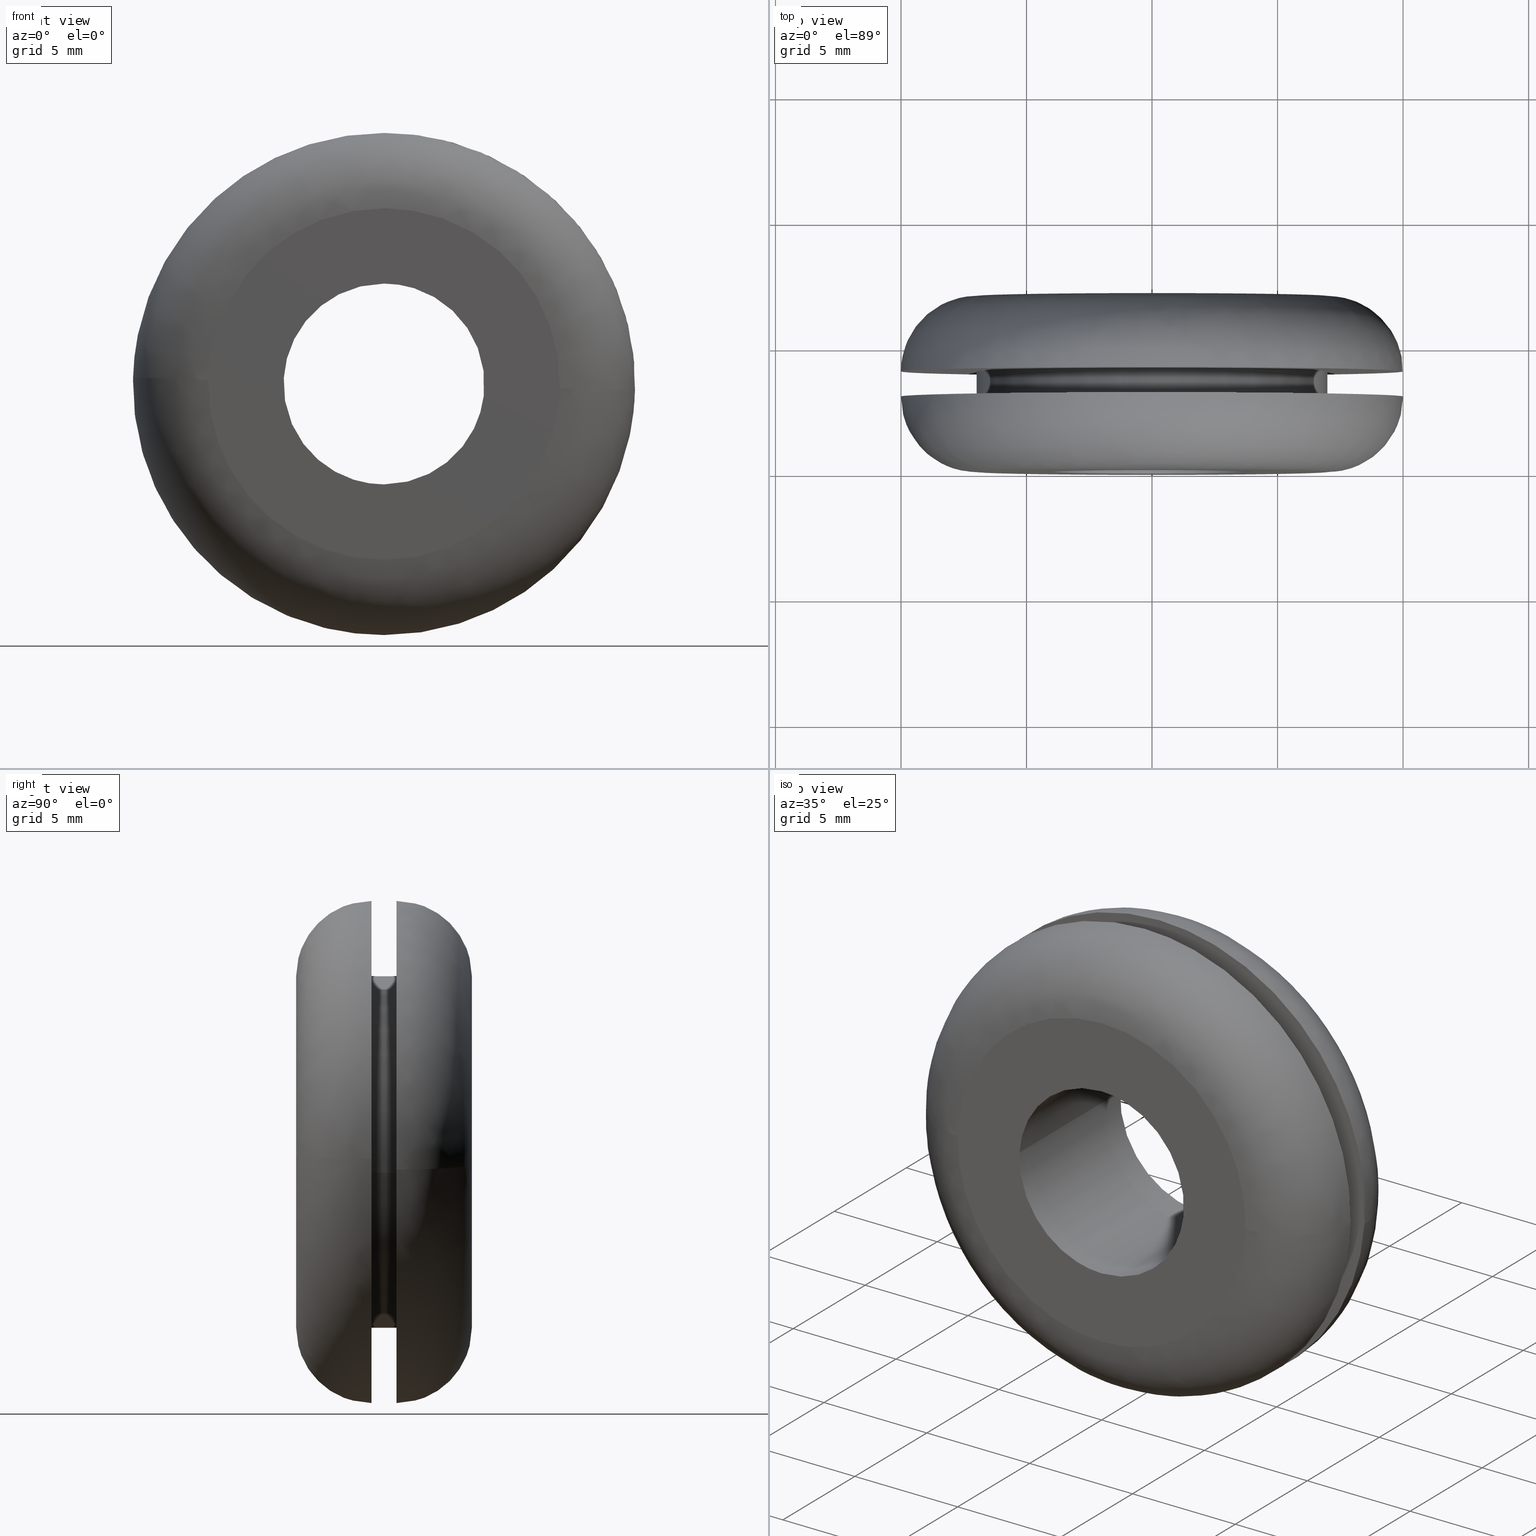
[diagram: canonical four-view strip — front | top / right | iso, engineering-drawing reading convention]
A machine part, canonical four-view strip (front | top / right | iso — engineering-drawing reading convention). The complete STEP part file that produces these views, byte-faithful:
ISO-10303-21;
HEADER;
/****************************************************************
 * Generated by software with PDE/Lib inside                    *
 * PDElib Version 4.4.1-0003, patched  Thursday August 19 11:58 *
 * International Technegroup Inc. (www.iti-oh.com)              *
 ****************************************************************/
FILE_DESCRIPTION((''),'2;1');
FILE_NAME('','2005-12-14T13:41:36',(''),(''),'','CADfix','');
FILE_SCHEMA(('AUTOMOTIVE_DESIGN'));
ENDSEC;
DATA;
#5=APPLICATION_CONTEXT('automotive design');
#6=APPLICATION_PROTOCOL_DEFINITION('Draft International Standard','automotive_design',1998,#5);
#7=PRODUCT_CONTEXT('None',#5,'mechanical');
#8=PRODUCT('grommet','','None',(#7));
#9=PRODUCT_RELATED_PRODUCT_CATEGORY('part','description',(#8));
#10=PRODUCT_DEFINITION_FORMATION('None','None',#8);
#11=PRODUCT_DEFINITION_CONTEXT('part definition',#5,'design');
#12=PRODUCT_DEFINITION('None','None',#10,#11);
#18=(NAMED_UNIT(*)PLANE_ANGLE_UNIT()SI_UNIT($,.RADIAN.));
#19=DIMENSIONAL_EXPONENTS(0.0,0.0,0.0,0.0,0.0,0.0,0.0);
#20=PLANE_ANGLE_MEASURE_WITH_UNIT(PLANE_ANGLE_MEASURE(0.017453292500000),#18);
#24=(CONVERSION_BASED_UNIT('DEGREE',#20)NAMED_UNIT(#19)PLANE_ANGLE_UNIT());
#28=(NAMED_UNIT(*)SI_UNIT($,.STERADIAN.)SOLID_ANGLE_UNIT());
#32=(LENGTH_UNIT()NAMED_UNIT(*)SI_UNIT(.MILLI.,.METRE.));
#34=UNCERTAINTY_MEASURE_WITH_UNIT(LENGTH_MEASURE(0.001000000000000),#32,'DISTANCE_ACCURACY_VALUE','');
#36=(GEOMETRIC_REPRESENTATION_CONTEXT(3)GLOBAL_UNCERTAINTY_ASSIGNED_CONTEXT((#34))GLOBAL_UNIT_ASSIGNED_CONTEXT((#24,#28,#32))REPRESENTATION_CONTEXT('None','None'));
#37=AXIS2_PLACEMENT_3D('',#38,#39,#40);
#38=CARTESIAN_POINT('',(0.0,0.0,0.0));
#39=DIRECTION('',(0.0,0.0,1.0));
#40=DIRECTION('',(1.0,0.0,0.0));
#41=ADVANCED_BREP_SHAPE_REPRESENTATION('',(#37,#915),#36);
#42=PRODUCT_DEFINITION_SHAPE('','',#12);
#43=SHAPE_DEFINITION_REPRESENTATION(#42,#41);
#44=CARTESIAN_POINT('',(6.951066684545665,4.025000000000001,-0.826239642597309));
#45=CARTESIAN_POINT('',(6.974713308140240,4.025000000000000,-0.627303100465844));
#46=CARTESIAN_POINT('',(6.986943588953067,4.025000000000000,-0.427339776743999));
#47=CARTESIAN_POINT('',(7.414283365697066,4.025000000000000,6.559603812209068));
#48=CARTESIAN_POINT('',(0.427339776743999,4.025000000000000,6.986943588953067));
#49=CARTESIAN_POINT('',(-6.559603812209068,4.025000000000000,7.414283365697066));
#50=CARTESIAN_POINT('',(-6.986943588953067,4.025000000000000,0.427339776743999));
#51=CARTESIAN_POINT('',(6.951066684545665,2.974375000000000,-0.826239642597309));
#52=CARTESIAN_POINT('',(6.974713308140240,2.974374999999999,-0.627303100465844));
#53=CARTESIAN_POINT('',(6.986943588953067,2.974374999999999,-0.427339776743999));
#54=CARTESIAN_POINT('',(7.414283365697066,2.974375000000000,6.559603812209068));
#55=CARTESIAN_POINT('',(0.427339776743999,2.974374999999999,6.986943588953067));
#56=CARTESIAN_POINT('',(-6.559603812209068,2.974375000000000,7.414283365697066));
#57=CARTESIAN_POINT('',(-6.986943588953067,2.974374999999999,0.427339776743999));
#65=(BOUNDED_SURFACE()B_SPLINE_SURFACE(2,1,((#44,#51),(#45,#52),(#46,#53),(#47,#54),(#48,#55),(#49,#56),(#50,#57)),.UNSPECIFIED.,.F.,.F.,.U.)B_SPLINE_SURFACE_WITH_KNOTS((3,2,2,3),(2,2),(0.0,0.463919189857867,12.061898936304530,23.659878682751181),(0.0,1.0),.UNSPECIFIED.)GEOMETRIC_REPRESENTATION_ITEM()RATIONAL_B_SPLINE_SURFACE(((0.977505800795127,0.977505800795127),(0.988284271247462,0.988284271247462),(1.0,1.0),(0.707106781186548,0.707106781186548),(1.0,1.0),(0.707106781186548,0.707106781186548),(1.0,1.0)))REPRESENTATION_ITEM('')SURFACE());
#66=CARTESIAN_POINT('',(6.951067166005178,2.999999999999899,-0.826235592109230));
#67=VERTEX_POINT('',#66);
#68=CARTESIAN_POINT('',(0.0,3.0,7.0));
#69=VERTEX_POINT('',#68);
#70=CARTESIAN_POINT('',(6.951067166005178,2.999999999999898,-0.826235592109230));
#71=CARTESIAN_POINT('',(7.0,3.000000000000000,-0.414566790908887));
#72=CARTESIAN_POINT('',(7.0,3.0,-1.836910E-016));
#73=CARTESIAN_POINT('',(6.999999999999999,3.000000000000000,6.999999999999999));
#74=CARTESIAN_POINT('',(0.0,3.0,7.0));
#82=(BOUNDED_CURVE()B_SPLINE_CURVE(2,(#70,#71,#72,#73,#74),.UNSPECIFIED.,.F.,.U.)B_SPLINE_CURVE_WITH_KNOTS((3,2,3),(0.229562571996310,0.250000000000000,0.500000000000000),.UNSPECIFIED.)CURVE()GEOMETRIC_REPRESENTATION_ITEM()RATIONAL_B_SPLINE_CURVE((0.956026947214111,0.976056063710924,1.0,0.707106781186547,1.0))REPRESENTATION_ITEM(''));
#83=EDGE_CURVE('',#67,#69,#82,.T.);
#84=ORIENTED_EDGE('',*,*,#83,.F.);
#85=CARTESIAN_POINT('',(6.951067160060351,4.0,-0.826235642122928));
#86=VERTEX_POINT('',#85);
#87=CARTESIAN_POINT('',(6.951067160060351,4.0,-0.826235642122928));
#88=CARTESIAN_POINT('',(6.951067166005178,2.999999999999899,-0.826235592109230));
#89=QUASI_UNIFORM_CURVE('',1,(#87,#88),.UNSPECIFIED.,.F.,.U.);
#90=EDGE_CURVE('',#86,#67,#89,.T.);
#91=ORIENTED_EDGE('',*,*,#90,.F.);
#92=CARTESIAN_POINT('',(0.0,4.0,7.0));
#93=VERTEX_POINT('',#92);
#94=CARTESIAN_POINT('',(6.951067160060351,4.0,-0.826235642122928));
#95=CARTESIAN_POINT('',(6.999999999999999,4.0,-0.414566816180102));
#96=CARTESIAN_POINT('',(7.0,4.0,-1.836910E-016));
#97=CARTESIAN_POINT('',(6.999999999999999,4.0,6.999999999999999));
#98=CARTESIAN_POINT('',(0.0,4.0,7.0));
#106=(BOUNDED_CURVE()B_SPLINE_CURVE(2,(#94,#95,#96,#97,#98),.UNSPECIFIED.,.F.,.U.)B_SPLINE_CURVE_WITH_KNOTS((3,2,3),(0.229562570780312,0.250000000000000,0.500000000000000),.UNSPECIFIED.)CURVE()GEOMETRIC_REPRESENTATION_ITEM()RATIONAL_B_SPLINE_CURVE((0.956026944830704,0.976056062286294,1.0,0.707106781186547,1.0))REPRESENTATION_ITEM(''));
#107=EDGE_CURVE('',#86,#93,#106,.T.);
#108=ORIENTED_EDGE('',*,*,#107,.T.);
#109=CARTESIAN_POINT('',(-6.986943966739477,4.0,0.427333599901195));
#110=VERTEX_POINT('',#109);
#111=CARTESIAN_POINT('',(0.0,4.0,7.0));
#112=CARTESIAN_POINT('',(-6.584948300672126,4.000000000000001,6.999999999999999));
#113=CARTESIAN_POINT('',(-6.986943966739477,4.0,0.427333599901195));
#121=(BOUNDED_CURVE()B_SPLINE_CURVE(2,(#111,#112,#113),.UNSPECIFIED.,.F.,.U.)B_SPLINE_CURVE_WITH_KNOTS((3,3),(0.500000000000000,0.739333114782848),.UNSPECIFIED.)CURVE()GEOMETRIC_REPRESENTATION_ITEM()RATIONAL_B_SPLINE_CURVE((1.0,0.719603814570409,0.976072368597561))REPRESENTATION_ITEM(''));
#122=EDGE_CURVE('',#93,#110,#121,.T.);
#123=ORIENTED_EDGE('',*,*,#122,.T.);
#124=CARTESIAN_POINT('',(-6.986943971456531,3.000000000000129,0.427333522775779));
#125=VERTEX_POINT('',#124);
#126=CARTESIAN_POINT('',(-6.986943966739477,4.0,0.427333599901195));
#127=CARTESIAN_POINT('',(-6.986943971456531,3.000000000000129,0.427333522775779));
#128=QUASI_UNIFORM_CURVE('',1,(#126,#127),.UNSPECIFIED.,.F.,.U.);
#129=EDGE_CURVE('',#110,#125,#128,.T.);
#130=ORIENTED_EDGE('',*,*,#129,.T.);
#131=CARTESIAN_POINT('',(0.0,3.0,7.0));
#132=CARTESIAN_POINT('',(-6.584948373495934,2.999999999999999,6.999999999999999));
#133=CARTESIAN_POINT('',(-6.986943971456531,3.000000000000130,0.427333522775779));
#141=(BOUNDED_CURVE()B_SPLINE_CURVE(2,(#131,#132,#133),.UNSPECIFIED.,.F.,.U.)B_SPLINE_CURVE_WITH_KNOTS((3,3),(0.500000000000000,0.739333116687507),.UNSPECIFIED.)CURVE()GEOMETRIC_REPRESENTATION_ITEM()RATIONAL_B_SPLINE_CURVE((1.0,0.719603812338962,0.976072372679614))REPRESENTATION_ITEM(''));
#142=EDGE_CURVE('',#69,#125,#141,.T.);
#143=ORIENTED_EDGE('',*,*,#142,.F.);
#144=EDGE_LOOP('',(#84,#91,#108,#123,#130,#143));
#145=FACE_OUTER_BOUND('',#144,.T.);
#146=ADVANCED_FACE('',(#145),#65,.T.);
#147=CARTESIAN_POINT('',(-6.986943588953067,4.025000000000000,0.427339776743999));
#148=CARTESIAN_POINT('',(-7.414283365697066,4.025000000000000,-6.559603812209068));
#149=CARTESIAN_POINT('',(-0.427339776743999,4.025000000000000,-6.986943588953067));
#150=CARTESIAN_POINT('',(6.170804435876506,4.025000000000000,-7.390503377127691));
#151=CARTESIAN_POINT('',(6.951066684545665,4.025000000000001,-0.826239642597309));
#152=CARTESIAN_POINT('',(-6.986943588953067,2.974374999999999,0.427339776743999));
#153=CARTESIAN_POINT('',(-7.414283365697066,2.974375000000000,-6.559603812209068));
#154=CARTESIAN_POINT('',(-0.427339776743999,2.974374999999999,-6.986943588953067));
#155=CARTESIAN_POINT('',(6.170804435876506,2.974374999999998,-7.390503377127691));
#156=CARTESIAN_POINT('',(6.951066684545665,2.974375000000000,-0.826239642597309));
#164=(BOUNDED_SURFACE()B_SPLINE_SURFACE(2,1,((#147,#152),(#148,#153),(#149,#154),(#150,#155),(#151,#156)),.UNSPECIFIED.,.F.,.F.,.U.)B_SPLINE_SURFACE_WITH_KNOTS((3,2,3),(2,2),(0.0,11.597979746446660,22.732040303035451),(0.0,1.0),.UNSPECIFIED.)GEOMETRIC_REPRESENTATION_ITEM()RATIONAL_B_SPLINE_SURFACE(((1.0,1.0),(0.707106781186548,0.707106781186548),(1.0,1.0),(0.718822509939086,0.718822509939086),(0.977505800795127,0.977505800795127)))REPRESENTATION_ITEM('')SURFACE());
#165=CARTESIAN_POINT('',(0.0,3.0,-7.0));
#166=VERTEX_POINT('',#165);
#167=CARTESIAN_POINT('',(0.0,3.0,-7.0));
#168=CARTESIAN_POINT('',(6.217225330029973,3.000000000000001,-6.999999999999999));
#169=CARTESIAN_POINT('',(6.951067166005178,2.999999999999898,-0.826235592109230));
#177=(BOUNDED_CURVE()B_SPLINE_CURVE(2,(#167,#168,#169),.UNSPECIFIED.,.F.,.U.)B_SPLINE_CURVE_WITH_KNOTS((3,3),(0.0,0.229562571996310),.UNSPECIFIED.)CURVE()GEOMETRIC_REPRESENTATION_ITEM()RATIONAL_B_SPLINE_CURVE((1.0,0.731050717475624,0.956026947214111))REPRESENTATION_ITEM(''));
#178=EDGE_CURVE('',#166,#67,#177,.T.);
#179=ORIENTED_EDGE('',*,*,#178,.F.);
#180=CARTESIAN_POINT('',(-6.986943971456531,3.000000000000130,0.427333522775779));
#181=CARTESIAN_POINT('',(-7.000000000000001,3.000000000000000,0.213866207338468));
#182=CARTESIAN_POINT('',(-7.0,3.0,-1.836910E-016));
#183=CARTESIAN_POINT('',(-6.999999999999999,3.000000000000000,-6.999999999999999));
#184=CARTESIAN_POINT('',(0.0,3.0,-7.0));
#192=(BOUNDED_CURVE()B_SPLINE_CURVE(2,(#180,#181,#182,#183,#184),.UNSPECIFIED.,.F.,.U.)B_SPLINE_CURVE_WITH_KNOTS((3,2,3),(0.739333116687507,0.750000000000000,1.0),.UNSPECIFIED.)CURVE()GEOMETRIC_REPRESENTATION_ITEM()RATIONAL_B_SPLINE_CURVE((0.976072372679614,0.987502968847585,1.0,0.707106781186547,1.0))REPRESENTATION_ITEM(''));
#193=EDGE_CURVE('',#125,#166,#192,.T.);
#194=ORIENTED_EDGE('',*,*,#193,.F.);
#195=ORIENTED_EDGE('',*,*,#129,.F.);
#196=CARTESIAN_POINT('',(0.0,4.0,-7.0));
#197=VERTEX_POINT('',#196);
#198=CARTESIAN_POINT('',(-6.986943966739477,4.0,0.427333599901195));
#199=CARTESIAN_POINT('',(-7.000000000000001,4.000000000000000,0.213866246009296));
#200=CARTESIAN_POINT('',(-7.0,4.0,-1.836910E-016));
#201=CARTESIAN_POINT('',(-6.999999999999999,4.0,-6.999999999999999));
#202=CARTESIAN_POINT('',(0.0,4.0,-7.0));
#210=(BOUNDED_CURVE()B_SPLINE_CURVE(2,(#198,#199,#200,#201,#202),.UNSPECIFIED.,.F.,.U.)B_SPLINE_CURVE_WITH_KNOTS((3,2,3),(0.739333114782848,0.750000000000000,1.0),.UNSPECIFIED.)CURVE()GEOMETRIC_REPRESENTATION_ITEM()RATIONAL_B_SPLINE_CURVE((0.976072368597561,0.987502966616138,1.0,0.707106781186547,1.0))REPRESENTATION_ITEM(''));
#211=EDGE_CURVE('',#110,#197,#210,.T.);
#212=ORIENTED_EDGE('',*,*,#211,.T.);
#213=CARTESIAN_POINT('',(0.0,4.0,-7.0));
#214=CARTESIAN_POINT('',(6.217225284981444,4.000000000000001,-6.999999999999999));
#215=CARTESIAN_POINT('',(6.951067160060351,4.0,-0.826235642122928));
#223=(BOUNDED_CURVE()B_SPLINE_CURVE(2,(#213,#214,#215),.UNSPECIFIED.,.F.,.U.)B_SPLINE_CURVE_WITH_KNOTS((3,3),(0.0,0.229562570780312),.UNSPECIFIED.)CURVE()GEOMETRIC_REPRESENTATION_ITEM()RATIONAL_B_SPLINE_CURVE((1.0,0.731050718900253,0.956026944830704))REPRESENTATION_ITEM(''));
#224=EDGE_CURVE('',#197,#86,#223,.T.);
#225=ORIENTED_EDGE('',*,*,#224,.T.);
#226=ORIENTED_EDGE('',*,*,#90,.T.);
#227=EDGE_LOOP('',(#179,#194,#195,#212,#225,#226));
#228=FACE_OUTER_BOUND('',#227,.T.);
#229=ADVANCED_FACE('',(#228),#164,.T.);
#230=CARTESIAN_POINT('',(3.972038105454666,7.175000000000001,-0.472136938627034));
#231=CARTESIAN_POINT('',(3.985550461794422,7.175000000000001,-0.358458914551911));
#232=CARTESIAN_POINT('',(3.992539193687467,7.175000000000001,-0.244194158139428));
#233=CARTESIAN_POINT('',(4.236733351826894,7.175000000000001,3.748345035548039));
#234=CARTESIAN_POINT('',(0.244194158139428,7.175000000000001,3.992539193687467));
#235=CARTESIAN_POINT('',(-3.748345035548039,7.175000000000001,4.236733351826894));
#236=CARTESIAN_POINT('',(-3.992539193687467,7.175000000000001,0.244194158139428));
#237=CARTESIAN_POINT('',(3.972038105454666,-0.179375000000001,-0.472136938627034));
#238=CARTESIAN_POINT('',(3.985550461794422,-0.179375000000001,-0.358458914551911));
#239=CARTESIAN_POINT('',(3.992539193687467,-0.179375000000001,-0.244194158139428));
#240=CARTESIAN_POINT('',(4.236733351826894,-0.179375000000001,3.748345035548039));
#241=CARTESIAN_POINT('',(0.244194158139428,-0.179375000000001,3.992539193687467));
#242=CARTESIAN_POINT('',(-3.748345035548039,-0.179375000000001,4.236733351826894));
#243=CARTESIAN_POINT('',(-3.992539193687467,-0.179375000000001,0.244194158139428));
#251=(BOUNDED_SURFACE()B_SPLINE_SURFACE(2,1,((#230,#237),(#231,#238),(#232,#239),(#233,#240),(#234,#241),(#235,#242),(#236,#243)),.UNSPECIFIED.,.F.,.F.,.U.)B_SPLINE_SURFACE_WITH_KNOTS((3,2,2,3),(2,2),(0.0,0.265096679918781,6.892513677888300,13.519930675857820),(0.0,7.354375000000002),.UNSPECIFIED.)GEOMETRIC_REPRESENTATION_ITEM()RATIONAL_B_SPLINE_SURFACE(((0.977505800795127,0.977505800795127),(0.988284271247462,0.988284271247462),(1.0,1.0),(0.707106781186548,0.707106781186548),(1.0,1.0),(0.707106781186548,0.707106781186548),(1.0,1.0)))REPRESENTATION_ITEM('')SURFACE());
#252=CARTESIAN_POINT('',(3.972038936126205,7.0,-0.472129950170368));
#253=VERTEX_POINT('',#252);
#254=CARTESIAN_POINT('',(0.0,7.0,4.0));
#255=VERTEX_POINT('',#254);
#256=CARTESIAN_POINT('',(3.972038936126205,7.0,-0.472129950170368));
#257=CARTESIAN_POINT('',(4.0,7.0,-0.236892947439694));
#258=CARTESIAN_POINT('',(4.0,7.0,-1.836910E-016));
#259=CARTESIAN_POINT('',(4.000000000000000,6.999999999999999,4.000000000000000));
#260=CARTESIAN_POINT('',(0.0,7.0,4.0));
#268=(BOUNDED_CURVE()B_SPLINE_CURVE(2,(#256,#257,#258,#259,#260),.UNSPECIFIED.,.F.,.U.)B_SPLINE_CURVE_WITH_KNOTS((3,2,3),(0.229562770862239,0.250000000000000,0.500000000000000),.UNSPECIFIED.)CURVE()GEOMETRIC_REPRESENTATION_ITEM()RATIONAL_B_SPLINE_CURVE((0.956027337000208,0.976056296696852,1.0,0.707106781186548,1.0))REPRESENTATION_ITEM(''));
#269=EDGE_CURVE('',#253,#255,#268,.T.);
#270=ORIENTED_EDGE('',*,*,#269,.F.);
#271=CARTESIAN_POINT('',(3.972038926118297,-8.500847E-016,-0.472130034368349));
#272=VERTEX_POINT('',#271);
#273=CARTESIAN_POINT('',(3.972038936126205,7.0,-0.472129950170368));
#274=CARTESIAN_POINT('',(3.972038926118297,-8.500847E-016,-0.472130034368349));
#275=QUASI_UNIFORM_CURVE('',1,(#273,#274),.UNSPECIFIED.,.F.,.U.);
#276=EDGE_CURVE('',#253,#272,#275,.T.);
#277=ORIENTED_EDGE('',*,*,#276,.T.);
#278=CARTESIAN_POINT('',(0.0,-7.347638E-016,4.0));
#279=VERTEX_POINT('',#278);
#280=CARTESIAN_POINT('',(3.972038926118297,-8.500847E-016,-0.472130034368349));
#281=CARTESIAN_POINT('',(4.0,-7.347638E-016,-0.236892989983728));
#282=CARTESIAN_POINT('',(4.0,-7.347638E-016,-1.836910E-016));
#283=CARTESIAN_POINT('',(4.000000000000000,-7.347638E-016,4.000000000000000));
#284=CARTESIAN_POINT('',(0.0,-7.347638E-016,4.0));
#292=(BOUNDED_CURVE()B_SPLINE_CURVE(2,(#280,#281,#282,#283,#284),.UNSPECIFIED.,.F.,.U.)B_SPLINE_CURVE_WITH_KNOTS((3,2,3),(0.229562767279762,0.250000000000000,0.500000000000000),.UNSPECIFIED.)CURVE()GEOMETRIC_REPRESENTATION_ITEM()RATIONAL_B_SPLINE_CURVE((0.956027329978387,0.976056292499719,1.0,0.707106781186548,1.0))REPRESENTATION_ITEM(''));
#293=EDGE_CURVE('',#272,#279,#292,.T.);
#294=ORIENTED_EDGE('',*,*,#293,.T.);
#295=CARTESIAN_POINT('',(-3.992539270140139,-8.392267E-016,0.244192908142875));
#296=VERTEX_POINT('',#295);
#297=CARTESIAN_POINT('',(0.0,-7.347638E-016,4.0));
#298=CARTESIAN_POINT('',(-3.762825447901079,-7.347638E-016,4.000000000000001));
#299=CARTESIAN_POINT('',(-3.992539270140139,-8.392267E-016,0.244192908142875));
#307=(BOUNDED_CURVE()B_SPLINE_CURVE(2,(#297,#298,#299),.UNSPECIFIED.,.F.,.U.)B_SPLINE_CURVE_WITH_KNOTS((3,3),(0.500000000000000,0.739333016263455),.UNSPECIFIED.)CURVE()GEOMETRIC_REPRESENTATION_ITEM()RATIONAL_B_SPLINE_CURVE((1.0,0.719603929993058,0.976072157451558))REPRESENTATION_ITEM(''));
#308=EDGE_CURVE('',#279,#296,#307,.T.);
#309=ORIENTED_EDGE('',*,*,#308,.T.);
#310=CARTESIAN_POINT('',(-3.992539271071073,6.999999999999996,0.244192892922069));
#311=VERTEX_POINT('',#310);
#312=CARTESIAN_POINT('',(-3.992539271071073,6.999999999999996,0.244192892922069));
#313=CARTESIAN_POINT('',(-3.992539270140139,-8.392267E-016,0.244192908142875));
#314=QUASI_UNIFORM_CURVE('',1,(#312,#313),.UNSPECIFIED.,.F.,.U.);
#315=EDGE_CURVE('',#311,#296,#314,.T.);
#316=ORIENTED_EDGE('',*,*,#315,.F.);
#317=CARTESIAN_POINT('',(0.0,7.0,4.0));
#318=CARTESIAN_POINT('',(-3.762825462272950,7.000000000000001,4.000000000000000));
#319=CARTESIAN_POINT('',(-3.992539271071073,6.999999999999996,0.244192892922069));
#327=(BOUNDED_CURVE()B_SPLINE_CURVE(2,(#317,#318,#319),.UNSPECIFIED.,.F.,.U.)B_SPLINE_CURVE_WITH_KNOTS((3,3),(0.500000000000000,0.739333016921257),.UNSPECIFIED.)CURVE()GEOMETRIC_REPRESENTATION_ITEM()RATIONAL_B_SPLINE_CURVE((1.0,0.719603929222394,0.976072158861354))REPRESENTATION_ITEM(''));
#328=EDGE_CURVE('',#255,#311,#327,.T.);
#329=ORIENTED_EDGE('',*,*,#328,.F.);
#330=EDGE_LOOP('',(#270,#277,#294,#309,#316,#329));
#331=FACE_OUTER_BOUND('',#330,.T.);
#332=ADVANCED_FACE('',(#331),#251,.F.);
#333=CARTESIAN_POINT('',(-3.989174226994832,7.174999999999998,0.299210877245890));
#334=CARTESIAN_POINT('',(-3.990851894947443,7.175000000000002,0.271781248683839));
#335=CARTESIAN_POINT('',(-4.236733351826894,7.175000000000001,-3.748345035548039));
#336=CARTESIAN_POINT('',(-0.244194158139428,7.175000000000001,-3.992539193687467));
#337=CARTESIAN_POINT('',(3.526173963358004,7.175000000000000,-4.223144786930110));
#338=CARTESIAN_POINT('',(3.975376533398390,7.175000000000001,-0.444051097592546));
#339=CARTESIAN_POINT('',(3.978697018570981,7.175000000000001,-0.416116207192987));
#340=CARTESIAN_POINT('',(-3.989174226994832,-0.179375000000001,0.299210877245890));
#341=CARTESIAN_POINT('',(-3.990851894947443,-0.179375000000001,0.271781248683839));
#342=CARTESIAN_POINT('',(-4.236733351826894,-0.179375000000001,-3.748345035548039));
#343=CARTESIAN_POINT('',(-0.244194158139428,-0.179375000000001,-3.992539193687467));
#344=CARTESIAN_POINT('',(3.526173963358004,-0.179375000000001,-4.223144786930110));
#345=CARTESIAN_POINT('',(3.975376533398390,-0.179375000000001,-0.444051097592546));
#346=CARTESIAN_POINT('',(3.978697018570981,-0.179375000000001,-0.416116207192987));
#354=(BOUNDED_SURFACE()B_SPLINE_SURFACE(2,1,((#333,#340),(#334,#341),(#335,#342),(#336,#343),(#337,#344),(#338,#345),(#339,#346)),.UNSPECIFIED.,.F.,.F.,.U.)B_SPLINE_SURFACE_WITH_KNOTS((3,1,2,1,3),(2,2),(0.0,0.064947250892111,6.692364248861629,13.054684566912369,13.119641344657660),(0.0,7.354375000000004),.UNSPECIFIED.)GEOMETRIC_REPRESENTATION_ITEM()RATIONAL_B_SPLINE_SURFACE(((1.005740580190655,1.005740580190655),(1.002870290095327,1.002870290095327),(0.707106781186548,0.707106781186548),(1.0,1.0),(0.718822509939086,0.718822509939086),(0.980146855031721,0.980146855031721),(0.982787909268315,0.982787909268315)))REPRESENTATION_ITEM('')SURFACE());
#355=CARTESIAN_POINT('',(0.0,7.0,-4.0));
#356=VERTEX_POINT('',#355);
#357=CARTESIAN_POINT('',(0.0,7.0,-4.0));
#358=CARTESIAN_POINT('',(3.552704398476067,7.000000000000001,-4.000000000000000));
#359=CARTESIAN_POINT('',(3.972038936126205,7.0,-0.472129950170368));
#367=(BOUNDED_CURVE()B_SPLINE_CURVE(2,(#357,#358,#359),.UNSPECIFIED.,.F.,.U.)B_SPLINE_CURVE_WITH_KNOTS((3,3),(0.0,0.229562770862239),.UNSPECIFIED.)CURVE()GEOMETRIC_REPRESENTATION_ITEM()RATIONAL_B_SPLINE_CURVE((1.0,0.731050484489696,0.956027337000208))REPRESENTATION_ITEM(''));
#368=EDGE_CURVE('',#356,#253,#367,.T.);
#369=ORIENTED_EDGE('',*,*,#368,.F.);
#370=CARTESIAN_POINT('',(-3.992539271071073,6.999999999999996,0.244192892922069));
#371=CARTESIAN_POINT('',(-4.000000000000000,7.000000000000001,0.122210418811918));
#372=CARTESIAN_POINT('',(-4.0,7.0,-1.836910E-016));
#373=CARTESIAN_POINT('',(-4.000000000000000,6.999999999999999,-4.000000000000000));
#374=CARTESIAN_POINT('',(0.0,7.0,-4.0));
#382=(BOUNDED_CURVE()B_SPLINE_CURVE(2,(#370,#371,#372,#373,#374),.UNSPECIFIED.,.F.,.U.)B_SPLINE_CURVE_WITH_KNOTS((3,2,3),(0.739333016921257,0.750000000000000,1.0),.UNSPECIFIED.)CURVE()GEOMETRIC_REPRESENTATION_ITEM()RATIONAL_B_SPLINE_CURVE((0.976072158861354,0.987502851964153,1.0,0.707106781186548,1.0))REPRESENTATION_ITEM(''));
#383=EDGE_CURVE('',#311,#356,#382,.T.);
#384=ORIENTED_EDGE('',*,*,#383,.F.);
#385=ORIENTED_EDGE('',*,*,#315,.T.);
#386=CARTESIAN_POINT('',(0.0,-7.347638E-016,-4.0));
#387=VERTEX_POINT('',#386);
#388=CARTESIAN_POINT('',(-3.992539270140139,-8.392267E-016,0.244192908142875));
#389=CARTESIAN_POINT('',(-4.000000000000001,-7.347638E-016,0.122210426443659));
#390=CARTESIAN_POINT('',(-4.0,-7.347638E-016,-1.836910E-016));
#391=CARTESIAN_POINT('',(-4.000000000000000,-7.347638E-016,-4.000000000000000));
#392=CARTESIAN_POINT('',(0.0,-7.347638E-016,-4.0));
#400=(BOUNDED_CURVE()B_SPLINE_CURVE(2,(#388,#389,#390,#391,#392),.UNSPECIFIED.,.F.,.U.)B_SPLINE_CURVE_WITH_KNOTS((3,2,3),(0.739333016263455,0.750000000000000,1.0),.UNSPECIFIED.)CURVE()GEOMETRIC_REPRESENTATION_ITEM()RATIONAL_B_SPLINE_CURVE((0.976072157451558,0.987502851193490,1.0,0.707106781186548,1.0))REPRESENTATION_ITEM(''));
#401=EDGE_CURVE('',#296,#387,#400,.T.);
#402=ORIENTED_EDGE('',*,*,#401,.T.);
#403=CARTESIAN_POINT('',(0.0,-7.347638E-016,-4.0));
#404=CARTESIAN_POINT('',(3.552704322636881,-7.347638E-016,-4.000000000000001));
#405=CARTESIAN_POINT('',(3.972038926118297,-8.500847E-016,-0.472130034368349));
#413=(BOUNDED_CURVE()B_SPLINE_CURVE(2,(#403,#404,#405),.UNSPECIFIED.,.F.,.U.)B_SPLINE_CURVE_WITH_KNOTS((3,3),(0.0,0.229562767279762),.UNSPECIFIED.)CURVE()GEOMETRIC_REPRESENTATION_ITEM()RATIONAL_B_SPLINE_CURVE((1.0,0.731050488686828,0.956027329978387))REPRESENTATION_ITEM(''));
#414=EDGE_CURVE('',#387,#272,#413,.T.);
#415=ORIENTED_EDGE('',*,*,#414,.T.);
#416=ORIENTED_EDGE('',*,*,#276,.F.);
#417=EDGE_LOOP('',(#369,#384,#385,#402,#415,#416));
#418=FACE_OUTER_BOUND('',#417,.T.);
#419=ADVANCED_FACE('',(#418),#354,.F.);
#420=CARTESIAN_POINT('',(-9.989543121437887,3.209172553633379,0.251117477667668));
#421=CARTESIAN_POINT('',(-10.240660599105558,3.209172553633380,-9.738425643770217));
#422=CARTESIAN_POINT('',(-0.251117477667671,3.209172553633379,-9.989543121437887));
#423=CARTESIAN_POINT('',(9.738425643770217,3.209172553633380,-10.240660599105560));
#424=CARTESIAN_POINT('',(9.989543121437887,3.209172553633379,-0.251117477667672));
#425=CARTESIAN_POINT('',(-10.229985953123554,-0.232007044478159,0.257161737818726));
#426=CARTESIAN_POINT('',(-10.487147690942281,-0.232007044478159,-9.972824215304826));
#427=CARTESIAN_POINT('',(-0.257161737818728,-0.232007044478159,-10.229985953123554));
#428=CARTESIAN_POINT('',(9.972824215304826,-0.232007044478159,-10.487147690942281));
#429=CARTESIAN_POINT('',(10.229985953123554,-0.232007044478159,-0.257161737818729));
#430=CARTESIAN_POINT('',(-6.789803307728222,0.007222948350152,0.170682308466864));
#431=CARTESIAN_POINT('',(-6.960485616195088,0.007222948350151,-6.619120999261356));
#432=CARTESIAN_POINT('',(-0.170682308466866,0.007222948350152,-6.789803307728222));
#433=CARTESIAN_POINT('',(6.619120999261356,0.007222948350151,-6.960485616195088));
#434=CARTESIAN_POINT('',(6.789803307728222,0.007222948350152,-0.170682308466866));
#442=(BOUNDED_SURFACE()B_SPLINE_SURFACE(2,2,((#420,#425,#430),(#421,#426,#431),(#422,#427,#432),(#423,#428,#433),(#424,#429,#434)),.UNSPECIFIED.,.F.,.F.,.U.)B_SPLINE_SURFACE_WITH_KNOTS((3,2,3),(3,3),(0.0,16.556445674216121,33.112891348432242),(0.0,5.467110975578632),.UNSPECIFIED.)GEOMETRIC_REPRESENTATION_ITEM()RATIONAL_B_SPLINE_SURFACE(((0.910892941386805,0.599412934105556,0.915966621324616),(0.644098575789570,0.423848950436964,0.647686209279166),(0.910892941386805,0.599412934105556,0.915966621324616),(0.644098575789570,0.423848950436964,0.647686209279166),(0.910892941386805,0.599412934105556,0.915966621324616)))REPRESENTATION_ITEM('')SURFACE());
#443=CARTESIAN_POINT('',(-9.996841892832897,2.999999999971457,0.251300954437361));
#444=VERTEX_POINT('',#443);
#445=CARTESIAN_POINT('',(0.0,3.0,-10.0));
#446=VERTEX_POINT('',#445);
#447=CARTESIAN_POINT('',(-9.996841892832897,2.999999999971457,0.251300954437361));
#448=CARTESIAN_POINT('',(-10.000000000000002,3.000000000000000,0.125670321237784));
#449=CARTESIAN_POINT('',(-10.0,3.0,-1.836910E-016));
#450=CARTESIAN_POINT('',(-10.000000000000002,3.0,-10.000000000000002));
#451=CARTESIAN_POINT('',(0.0,3.0,-10.0));
#459=(BOUNDED_CURVE()B_SPLINE_CURVE(2,(#447,#448,#449,#450,#451),.UNSPECIFIED.,.F.,.U.)B_SPLINE_CURVE_WITH_KNOTS((3,2,3),(0.745579891769668,0.750000000000000,1.0),.UNSPECIFIED.)CURVE()GEOMETRIC_REPRESENTATION_ITEM()RATIONAL_B_SPLINE_CURVE((0.989826157681261,0.994821521091657,1.0,0.707106781186548,1.0))REPRESENTATION_ITEM(''));
#460=EDGE_CURVE('',#444,#446,#459,.T.);
#461=ORIENTED_EDGE('',*,*,#460,.T.);
#462=CARTESIAN_POINT('',(9.996841892832897,2.999999999971457,-0.251300954437362));
#463=VERTEX_POINT('',#462);
#464=CARTESIAN_POINT('',(0.0,3.0,-10.0));
#465=CARTESIAN_POINT('',(9.751778761798706,3.000000000000000,-10.0));
#466=CARTESIAN_POINT('',(9.996841892832897,2.999999999971457,-0.251300954437362));
#474=(BOUNDED_CURVE()B_SPLINE_CURVE(2,(#464,#465,#466),.UNSPECIFIED.,.F.,.U.)B_SPLINE_CURVE_WITH_KNOTS((3,3),(0.0,0.245579891769668),.UNSPECIFIED.)CURVE()GEOMETRIC_REPRESENTATION_ITEM()RATIONAL_B_SPLINE_CURVE((1.0,0.712285260094891,0.989826157681261))REPRESENTATION_ITEM(''));
#475=EDGE_CURVE('',#446,#463,#474,.T.);
#476=ORIENTED_EDGE('',*,*,#475,.T.);
#477=CARTESIAN_POINT('',(6.997789325016047,-1.038440E-016,-0.175910668105941));
#478=VERTEX_POINT('',#477);
#479=CARTESIAN_POINT('',(9.996841892832897,2.999999999971456,-0.251300954437362));
#480=CARTESIAN_POINT('',(9.996841892775928,6.600574E-011,-0.251300954431939));
#481=CARTESIAN_POINT('',(6.997789325016048,-1.038440E-016,-0.175910668105941));
#489=(BOUNDED_CURVE()B_SPLINE_CURVE(2,(#479,#480,#481),.UNSPECIFIED.,.F.,.U.)B_SPLINE_CURVE_WITH_KNOTS((3,3),(-1.723441281965177,-0.263586878950601),.UNSPECIFIED.)CURVE()GEOMETRIC_REPRESENTATION_ITEM()RATIONAL_B_SPLINE_CURVE((0.883897567131759,0.626638727245067,0.888510409054381))REPRESENTATION_ITEM(''));
#490=EDGE_CURVE('',#463,#478,#489,.T.);
#491=ORIENTED_EDGE('',*,*,#490,.T.);
#492=CARTESIAN_POINT('',(0.0,-1.332268E-015,-7.0));
#493=VERTEX_POINT('',#492);
#494=CARTESIAN_POINT('',(0.0,-1.332268E-015,-7.0));
#495=CARTESIAN_POINT('',(6.826245133261127,-1.332268E-015,-7.0));
#496=CARTESIAN_POINT('',(6.997789325016048,-1.038440E-016,-0.175910668105941));
#504=(BOUNDED_CURVE()B_SPLINE_CURVE(2,(#494,#495,#496),.UNSPECIFIED.,.F.,.U.)B_SPLINE_CURVE_WITH_KNOTS((3,3),(0.0,0.245579891769720),.UNSPECIFIED.)CURVE()GEOMETRIC_REPRESENTATION_ITEM()RATIONAL_B_SPLINE_CURVE((1.0,0.712285260094830,0.989826157681378))REPRESENTATION_ITEM(''));
#505=EDGE_CURVE('',#493,#478,#504,.T.);
#506=ORIENTED_EDGE('',*,*,#505,.F.);
#507=CARTESIAN_POINT('',(-6.997789325016046,-1.038440E-016,0.175910668105943));
#508=VERTEX_POINT('',#507);
#509=CARTESIAN_POINT('',(-6.997789325016046,-1.038440E-016,0.175910668105943));
#510=CARTESIAN_POINT('',(-6.999999999999999,-1.332268E-015,0.087969224865409));
#511=CARTESIAN_POINT('',(-7.0,-1.332268E-015,-1.836910E-016));
#512=CARTESIAN_POINT('',(-6.999999999999999,-1.332268E-015,-6.999999999999999));
#513=CARTESIAN_POINT('',(0.0,-1.332268E-015,-7.0));
#521=(BOUNDED_CURVE()B_SPLINE_CURVE(2,(#509,#510,#511,#512,#513),.UNSPECIFIED.,.F.,.U.)B_SPLINE_CURVE_WITH_KNOTS((3,2,3),(0.745579891769720,0.750000000000000,1.0),.UNSPECIFIED.)CURVE()GEOMETRIC_REPRESENTATION_ITEM()RATIONAL_B_SPLINE_CURVE((0.989826157681378,0.994821521091718,1.0,0.707106781186547,1.0))REPRESENTATION_ITEM(''));
#522=EDGE_CURVE('',#508,#493,#521,.T.);
#523=ORIENTED_EDGE('',*,*,#522,.F.);
#524=CARTESIAN_POINT('',(-9.996841892832897,2.999999999971456,0.251300954437361));
#525=CARTESIAN_POINT('',(-9.996841892775928,6.600574E-011,0.251300954431940));
#526=CARTESIAN_POINT('',(-6.997789325016046,-1.038440E-016,0.175910668105943));
#534=(BOUNDED_CURVE()B_SPLINE_CURVE(2,(#524,#525,#526),.UNSPECIFIED.,.F.,.U.)B_SPLINE_CURVE_WITH_KNOTS((3,3),(-1.723441281965177,-0.263586878950601),.UNSPECIFIED.)CURVE()GEOMETRIC_REPRESENTATION_ITEM()RATIONAL_B_SPLINE_CURVE((0.883897567131759,0.626638727245067,0.888510409054381))REPRESENTATION_ITEM(''));
#535=EDGE_CURVE('',#444,#508,#534,.T.);
#536=ORIENTED_EDGE('',*,*,#535,.F.);
#537=EDGE_LOOP('',(#461,#476,#491,#506,#523,#536));
#538=FACE_OUTER_BOUND('',#537,.T.);
#539=ADVANCED_FACE('',(#538),#442,.T.);
#540=CARTESIAN_POINT('',(9.989543121437887,3.209172553633379,-0.251117477667667));
#541=CARTESIAN_POINT('',(10.240660599105553,3.209172553633380,9.738425643770221));
#542=CARTESIAN_POINT('',(0.251117477667668,3.209172553633379,9.989543121437887));
#543=CARTESIAN_POINT('',(-9.738425643770221,3.209172553633380,10.240660599105558));
#544=CARTESIAN_POINT('',(-9.989543121437887,3.209172553633379,0.251117477667668));
#545=CARTESIAN_POINT('',(10.229985953123554,-0.232007044478159,-0.257161737818724));
#546=CARTESIAN_POINT('',(10.487147690942278,-0.232007044478159,9.972824215304829));
#547=CARTESIAN_POINT('',(0.257161737818725,-0.232007044478159,10.229985953123554));
#548=CARTESIAN_POINT('',(-9.972824215304829,-0.232007044478159,10.487147690942280));
#549=CARTESIAN_POINT('',(-10.229985953123554,-0.232007044478159,0.257161737818726));
#550=CARTESIAN_POINT('',(6.789803307728222,0.007222948350152,-0.170682308466863));
#551=CARTESIAN_POINT('',(6.960485616195085,0.007222948350151,6.619120999261360));
#552=CARTESIAN_POINT('',(0.170682308466864,0.007222948350152,6.789803307728222));
#553=CARTESIAN_POINT('',(-6.619120999261360,0.007222948350151,6.960485616195085));
#554=CARTESIAN_POINT('',(-6.789803307728222,0.007222948350152,0.170682308466864));
#562=(BOUNDED_SURFACE()B_SPLINE_SURFACE(2,2,((#540,#545,#550),(#541,#546,#551),(#542,#547,#552),(#543,#548,#553),(#544,#549,#554)),.UNSPECIFIED.,.F.,.F.,.U.)B_SPLINE_SURFACE_WITH_KNOTS((3,2,3),(3,3),(0.0,16.556445674216121,33.112891348432242),(0.0,5.467110975578633),.UNSPECIFIED.)GEOMETRIC_REPRESENTATION_ITEM()RATIONAL_B_SPLINE_SURFACE(((0.910892941386805,0.599412934105556,0.915966621324616),(0.644098575789570,0.423848950436964,0.647686209279166),(0.910892941386805,0.599412934105556,0.915966621324616),(0.644098575789570,0.423848950436964,0.647686209279166),(0.910892941386805,0.599412934105556,0.915966621324616)))REPRESENTATION_ITEM('')SURFACE());
#563=CARTESIAN_POINT('',(0.0,3.0,10.0));
#564=VERTEX_POINT('',#563);
#565=CARTESIAN_POINT('',(0.0,3.0,10.0));
#566=CARTESIAN_POINT('',(-9.751778761798668,3.0,10.000000000000002));
#567=CARTESIAN_POINT('',(-9.996841892832897,2.999999999971457,0.251300954437361));
#575=(BOUNDED_CURVE()B_SPLINE_CURVE(2,(#565,#566,#567),.UNSPECIFIED.,.F.,.U.)B_SPLINE_CURVE_WITH_KNOTS((3,3),(0.500000000000000,0.745579891769667),.UNSPECIFIED.)CURVE()GEOMETRIC_REPRESENTATION_ITEM()RATIONAL_B_SPLINE_CURVE((1.0,0.712285260094892,0.989826157681259))REPRESENTATION_ITEM(''));
#576=EDGE_CURVE('',#564,#444,#575,.T.);
#577=ORIENTED_EDGE('',*,*,#576,.T.);
#578=ORIENTED_EDGE('',*,*,#535,.T.);
#579=CARTESIAN_POINT('',(0.0,-1.332268E-015,7.0));
#580=VERTEX_POINT('',#579);
#581=CARTESIAN_POINT('',(0.0,-1.332268E-015,7.0));
#582=CARTESIAN_POINT('',(-6.826245133261146,-1.332268E-015,6.999999999999999));
#583=CARTESIAN_POINT('',(-6.997789325016046,-1.038440E-016,0.175910668105943));
#591=(BOUNDED_CURVE()B_SPLINE_CURVE(2,(#581,#582,#583),.UNSPECIFIED.,.F.,.U.)B_SPLINE_CURVE_WITH_KNOTS((3,3),(0.500000000000000,0.745579891769721),.UNSPECIFIED.)CURVE()GEOMETRIC_REPRESENTATION_ITEM()RATIONAL_B_SPLINE_CURVE((1.0,0.712285260094829,0.989826157681379))REPRESENTATION_ITEM(''));
#592=EDGE_CURVE('',#580,#508,#591,.T.);
#593=ORIENTED_EDGE('',*,*,#592,.F.);
#594=CARTESIAN_POINT('',(6.997789325016047,-1.038440E-016,-0.175910668105941));
#595=CARTESIAN_POINT('',(6.999999999999999,-1.332268E-015,-0.087969224865407));
#596=CARTESIAN_POINT('',(7.0,-1.332268E-015,-1.836910E-016));
#597=CARTESIAN_POINT('',(6.999999999999999,-1.332268E-015,6.999999999999999));
#598=CARTESIAN_POINT('',(0.0,-1.332268E-015,7.0));
#606=(BOUNDED_CURVE()B_SPLINE_CURVE(2,(#594,#595,#596,#597,#598),.UNSPECIFIED.,.F.,.U.)B_SPLINE_CURVE_WITH_KNOTS((3,2,3),(0.245579891769720,0.250000000000000,0.500000000000000),.UNSPECIFIED.)CURVE()GEOMETRIC_REPRESENTATION_ITEM()RATIONAL_B_SPLINE_CURVE((0.989826157681378,0.994821521091718,1.0,0.707106781186547,1.0))REPRESENTATION_ITEM(''));
#607=EDGE_CURVE('',#478,#580,#606,.T.);
#608=ORIENTED_EDGE('',*,*,#607,.F.);
#609=ORIENTED_EDGE('',*,*,#490,.F.);
#610=CARTESIAN_POINT('',(9.996841892832897,2.999999999971457,-0.251300954437362));
#611=CARTESIAN_POINT('',(10.0,3.000000000000000,-0.125670321237785));
#612=CARTESIAN_POINT('',(10.0,3.0,-1.836910E-016));
#613=CARTESIAN_POINT('',(10.000000000000002,3.0,10.000000000000002));
#614=CARTESIAN_POINT('',(0.0,3.0,10.0));
#622=(BOUNDED_CURVE()B_SPLINE_CURVE(2,(#610,#611,#612,#613,#614),.UNSPECIFIED.,.F.,.U.)B_SPLINE_CURVE_WITH_KNOTS((3,2,3),(0.245579891769668,0.250000000000000,0.500000000000000),.UNSPECIFIED.)CURVE()GEOMETRIC_REPRESENTATION_ITEM()RATIONAL_B_SPLINE_CURVE((0.989826157681261,0.994821521091657,1.0,0.707106781186548,1.0))REPRESENTATION_ITEM(''));
#623=EDGE_CURVE('',#463,#564,#622,.T.);
#624=ORIENTED_EDGE('',*,*,#623,.T.);
#625=EDGE_LOOP('',(#577,#578,#593,#608,#609,#624));
#626=FACE_OUTER_BOUND('',#625,.T.);
#627=ADVANCED_FACE('',(#626),#562,.T.);
#628=CARTESIAN_POINT('',(6.774856278696406,6.992738098923129,-0.473585243403883));
#629=CARTESIAN_POINT('',(6.788410071817493,6.992738098923129,-0.279691954485990));
#630=CARTESIAN_POINT('',(6.790852488247961,6.992738098923130,-0.085340861364940));
#631=CARTESIAN_POINT('',(6.876193349612899,6.992738098923130,6.705511626883019));
#632=CARTESIAN_POINT('',(0.085340861364941,6.992738098923130,6.790852488247961));
#633=CARTESIAN_POINT('',(-6.705511626883019,6.992738098923130,6.876193349612899));
#634=CARTESIAN_POINT('',(-6.790852488247961,6.992738098923130,0.085340861364941));
#635=CARTESIAN_POINT('',(10.207702002769070,7.232611387236871,-0.713552707055488));
#636=CARTESIAN_POINT('',(10.228123554975616,7.232611387236872,-0.421412943170860));
#637=CARTESIAN_POINT('',(10.231803553201896,7.232611387236871,-0.128583403933191));
#638=CARTESIAN_POINT('',(10.360386957135086,7.232611387236872,10.103220149268701));
#639=CARTESIAN_POINT('',(0.128583403933192,7.232611387236871,10.231803553201896));
#640=CARTESIAN_POINT('',(-10.103220149268701,7.232611387236872,10.360386957135086));
#641=CARTESIAN_POINT('',(-10.231803553201896,7.232611387236871,0.128583403933193));
#642=CARTESIAN_POINT('',(9.968412547829887,3.791388624474089,-0.696825569224137));
#643=CARTESIAN_POINT('',(9.988355377000124,3.791388624474089,-0.411534160125635));
#644=CARTESIAN_POINT('',(9.991949108526068,3.791388624474088,-0.125569145422015));
#645=CARTESIAN_POINT('',(10.117518253948083,3.791388624474089,9.866379963104052));
#646=CARTESIAN_POINT('',(0.125569145422016,3.791388624474088,9.991949108526068));
#647=CARTESIAN_POINT('',(-9.866379963104052,3.791388624474089,10.117518253948083));
#648=CARTESIAN_POINT('',(-9.991949108526068,3.791388624474088,0.125569145422016));
#656=(BOUNDED_SURFACE()B_SPLINE_SURFACE(2,2,((#628,#635,#642),(#629,#636,#643),(#630,#637,#644),(#631,#638,#645),(#632,#639,#646),(#633,#640,#647),(#634,#641,#648)),.UNSPECIFIED.,.F.,.F.,.U.)B_SPLINE_SURFACE_WITH_KNOTS((3,2,2,3),(3,3),(0.0,0.662259791365139,17.218770365012521,33.775280938659911),(0.0,5.467121750697482),.UNSPECIFIED.)GEOMETRIC_REPRESENTATION_ITEM()RATIONAL_B_SPLINE_SURFACE(((0.895729732449210,0.587800221482116,0.895729743804760),(0.905606490046838,0.594281596491894,0.905606501527600),(0.916342095240933,0.601326568744382,0.916342106857795),(0.647951709431553,0.425202094466791,0.647951717645915),(0.916342095240933,0.601326568744382,0.916342106857795),(0.647951709431553,0.425202094466791,0.647951717645915),(0.916342095240933,0.601326568744382,0.916342106857795)))REPRESENTATION_ITEM('')SURFACE());
#657=CARTESIAN_POINT('',(9.975656738315763,4.000000000020544,-0.697332517021288));
#658=VERTEX_POINT('',#657);
#659=CARTESIAN_POINT('',(0.0,4.0,10.0));
#660=VERTEX_POINT('',#659);
#661=CARTESIAN_POINT('',(9.975656738315763,4.000000000020544,-0.697332517021288));
#662=CARTESIAN_POINT('',(10.000000000000002,4.0,-0.349091160018626));
#663=CARTESIAN_POINT('',(10.0,4.0,-1.836910E-016));
#664=CARTESIAN_POINT('',(10.000000000000002,4.000000000000000,10.000000000000002));
#665=CARTESIAN_POINT('',(0.0,4.0,10.0));
#673=(BOUNDED_CURVE()B_SPLINE_CURVE(2,(#661,#662,#663,#664,#665),.UNSPECIFIED.,.F.,.U.)B_SPLINE_CURVE_WITH_KNOTS((3,2,3),(0.237833686491452,0.250000000000000,0.500000000000000),.UNSPECIFIED.)CURVE()GEOMETRIC_REPRESENTATION_ITEM()RATIONAL_B_SPLINE_CURVE((0.972879876294675,0.985746277101551,1.0,0.707106781186548,1.0))REPRESENTATION_ITEM(''));
#674=EDGE_CURVE('',#658,#660,#673,.T.);
#675=ORIENTED_EDGE('',*,*,#674,.F.);
#676=CARTESIAN_POINT('',(6.982959716952744,7.0,-0.488132761038677));
#677=VERTEX_POINT('',#676);
#678=CARTESIAN_POINT('',(6.982959716952744,7.0,-0.488132761038677));
#679=CARTESIAN_POINT('',(9.975656738363334,6.999999999859430,-0.697332515751550));
#680=CARTESIAN_POINT('',(9.975656738315763,4.000000000020544,-0.697332517021288));
#688=(BOUNDED_CURVE()B_SPLINE_CURVE(2,(#678,#679,#680),.UNSPECIFIED.,.F.,.U.)B_SPLINE_CURVE_WITH_KNOTS((3,3),(-1.734750791609713,-0.265249208355830),.UNSPECIFIED.)CURVE()GEOMETRIC_REPRESENTATION_ITEM()RATIONAL_B_SPLINE_CURVE((0.869031711858393,0.614498216544049,0.869031711870330))REPRESENTATION_ITEM(''));
#689=EDGE_CURVE('',#677,#658,#688,.T.);
#690=ORIENTED_EDGE('',*,*,#689,.F.);
#691=CARTESIAN_POINT('',(0.0,7.0,7.0));
#692=VERTEX_POINT('',#691);
#693=CARTESIAN_POINT('',(6.982959716952744,7.0,-0.488132761038677));
#694=CARTESIAN_POINT('',(6.999999999999999,6.999999999999999,-0.244363811128686));
#695=CARTESIAN_POINT('',(7.0,7.0,-1.836910E-016));
#696=CARTESIAN_POINT('',(6.999999999999999,6.999999999999999,6.999999999999999));
#697=CARTESIAN_POINT('',(0.0,7.0,7.0));
#705=(BOUNDED_CURVE()B_SPLINE_CURVE(2,(#693,#694,#695,#696,#697),.UNSPECIFIED.,.F.,.U.)B_SPLINE_CURVE_WITH_KNOTS((3,2,3),(0.237833686534855,0.250000000000000,0.500000000000000),.UNSPECIFIED.)CURVE()GEOMETRIC_REPRESENTATION_ITEM()RATIONAL_B_SPLINE_CURVE((0.972879876386475,0.985746277152400,1.0,0.707106781186547,1.0))REPRESENTATION_ITEM(''));
#706=EDGE_CURVE('',#677,#692,#705,.T.);
#707=ORIENTED_EDGE('',*,*,#706,.T.);
#708=CARTESIAN_POINT('',(-6.999447312662011,7.0,0.087962282790522));
#709=VERTEX_POINT('',#708);
#710=CARTESIAN_POINT('',(0.0,7.0,7.0));
#711=CARTESIAN_POINT('',(-6.912583502307486,6.999999999999999,6.999999999999999));
#712=CARTESIAN_POINT('',(-6.999447312662011,7.000000000000001,0.087962282790522));
#720=(BOUNDED_CURVE()B_SPLINE_CURVE(2,(#710,#711,#712),.UNSPECIFIED.,.F.,.U.)B_SPLINE_CURVE_WITH_KNOTS((3,3),(0.500000000000000,0.747784295742539),.UNSPECIFIED.)CURVE()GEOMETRIC_REPRESENTATION_ITEM()RATIONAL_B_SPLINE_CURVE((1.0,0.709702640194173,0.994854295231589))REPRESENTATION_ITEM(''));
#721=EDGE_CURVE('',#692,#709,#720,.T.);
#722=ORIENTED_EDGE('',*,*,#721,.T.);
#723=CARTESIAN_POINT('',(-9.999210442038091,4.000000000020454,0.125660398838969));
#724=VERTEX_POINT('',#723);
#725=CARTESIAN_POINT('',(-6.999447312662011,7.000000000000001,0.087962282790522));
#726=CARTESIAN_POINT('',(-9.999210441997255,6.999999993439261,0.125660398833005));
#727=CARTESIAN_POINT('',(-9.999210442038091,4.000000000020455,0.125660398838969));
#735=(BOUNDED_CURVE()B_SPLINE_CURVE(2,(#725,#726,#727),.UNSPECIFIED.,.F.,.U.)B_SPLINE_CURVE_WITH_KNOTS((3,3),(-1.734750789385992,-0.265249208355767),.UNSPECIFIED.)CURVE()GEOMETRIC_REPRESENTATION_ITEM()RATIONAL_B_SPLINE_CURVE((0.889029722771115,0.628638946622478,0.889029723571421))REPRESENTATION_ITEM(''));
#736=EDGE_CURVE('',#709,#724,#735,.T.);
#737=ORIENTED_EDGE('',*,*,#736,.T.);
#738=CARTESIAN_POINT('',(0.0,4.0,10.0));
#739=CARTESIAN_POINT('',(-9.875119299062348,4.0,10.0));
#740=CARTESIAN_POINT('',(-9.999210442038091,4.000000000020454,0.125660398838969));
#748=(BOUNDED_CURVE()B_SPLINE_CURVE(2,(#738,#739,#740),.UNSPECIFIED.,.F.,.U.)B_SPLINE_CURVE_WITH_KNOTS((3,3),(0.500000000000000,0.747784295921536),.UNSPECIFIED.)CURVE()GEOMETRIC_REPRESENTATION_ITEM()RATIONAL_B_SPLINE_CURVE((1.0,0.709702639984465,0.994854295643570))REPRESENTATION_ITEM(''));
#749=EDGE_CURVE('',#660,#724,#748,.T.);
#750=ORIENTED_EDGE('',*,*,#749,.F.);
#751=EDGE_LOOP('',(#675,#690,#707,#722,#737,#750));
#752=FACE_OUTER_BOUND('',#751,.T.);
#753=ADVANCED_FACE('',(#752),#656,.T.);
#754=CARTESIAN_POINT('',(-6.790852488247961,6.992738098923130,0.085340861364939));
#755=CARTESIAN_POINT('',(-6.876193349612898,6.992738098923130,-6.705511626883019));
#756=CARTESIAN_POINT('',(-0.085340861364940,6.992738098923130,-6.790852488247961));
#757=CARTESIAN_POINT('',(6.327624045770767,6.992738098923130,-6.871444424242037));
#758=CARTESIAN_POINT('',(6.774856252559509,6.992738098923130,-0.473585617304183));
#759=CARTESIAN_POINT('',(-10.231803553201896,7.232611387236871,0.128583403933190));
#760=CARTESIAN_POINT('',(-10.360386957135084,7.232611387236872,-10.103220149268701));
#761=CARTESIAN_POINT('',(-0.128583403933191,7.232611387236871,-10.231803553201896));
#762=CARTESIAN_POINT('',(9.533855477922005,7.232611387236870,-10.353231733020351));
#763=CARTESIAN_POINT('',(10.207701963388507,7.232611387236871,-0.713553270412509));
#764=CARTESIAN_POINT('',(-9.991949108526068,3.791388624474088,0.125569145422014));
#765=CARTESIAN_POINT('',(-10.117518253948083,3.791388624474089,-9.866379963104052));
#766=CARTESIAN_POINT('',(-0.125569145422014,3.791388624474088,-9.991949108526068));
#767=CARTESIAN_POINT('',(9.310362366528073,3.791388624474090,-10.110530762950749));
#768=CARTESIAN_POINT('',(9.968412509372485,3.791388624474089,-0.696826119374914));
#776=(BOUNDED_SURFACE()B_SPLINE_SURFACE(2,2,((#754,#759,#764),(#755,#760,#765),(#756,#761,#766),(#757,#762,#767),(#758,#763,#768)),.UNSPECIFIED.,.F.,.F.,.U.)B_SPLINE_SURFACE_WITH_KNOTS((3,2,3),(3,3),(0.0,16.556510573647390,32.450760724348882),(0.0,5.467121750697482),.UNSPECIFIED.)GEOMETRIC_REPRESENTATION_ITEM()RATIONAL_B_SPLINE_SURFACE(((0.916342095240933,0.601326568744382,0.916342106857795),(0.647951709431553,0.425202094466791,0.647951717645915),(0.916342095240933,0.601326568744382,0.916342106857795),(0.658687324863928,0.432247073437895,0.658687333214390),(0.895729713610772,0.587800209119863,0.895729724966322)))REPRESENTATION_ITEM('')SURFACE());
#777=CARTESIAN_POINT('',(0.0,4.0,-10.0));
#778=VERTEX_POINT('',#777);
#779=CARTESIAN_POINT('',(0.0,4.0,-10.0));
#780=CARTESIAN_POINT('',(9.325368470291839,4.000000000000001,-10.0));
#781=CARTESIAN_POINT('',(9.975656738315763,4.000000000020543,-0.697332517021288));
#789=(BOUNDED_CURVE()B_SPLINE_CURVE(2,(#779,#780,#781),.UNSPECIFIED.,.F.,.U.)B_SPLINE_CURVE_WITH_KNOTS((3,3),(0.0,0.237833686491452),.UNSPECIFIED.)CURVE()GEOMETRIC_REPRESENTATION_ITEM()RATIONAL_B_SPLINE_CURVE((1.0,0.721360504084996,0.972879876294675))REPRESENTATION_ITEM(''));
#790=EDGE_CURVE('',#778,#658,#789,.T.);
#791=ORIENTED_EDGE('',*,*,#790,.F.);
#792=CARTESIAN_POINT('',(-9.999210442038091,4.000000000020453,0.125660398838969));
#793=CARTESIAN_POINT('',(-10.0,4.000000000000000,0.062832679924344));
#794=CARTESIAN_POINT('',(-10.0,4.0,-1.836910E-016));
#795=CARTESIAN_POINT('',(-10.000000000000002,4.000000000000000,-10.000000000000002));
#796=CARTESIAN_POINT('',(0.0,4.0,-10.0));
#804=(BOUNDED_CURVE()B_SPLINE_CURVE(2,(#792,#793,#794,#795,#796),.UNSPECIFIED.,.F.,.U.)B_SPLINE_CURVE_WITH_KNOTS((3,2,3),(0.747784295921537,0.750000000000000,1.0),.UNSPECIFIED.)CURVE()GEOMETRIC_REPRESENTATION_ITEM()RATIONAL_B_SPLINE_CURVE((0.994854295643571,0.997404141202083,1.0,0.707106781186548,1.0))REPRESENTATION_ITEM(''));
#805=EDGE_CURVE('',#724,#778,#804,.T.);
#806=ORIENTED_EDGE('',*,*,#805,.F.);
#807=ORIENTED_EDGE('',*,*,#736,.F.);
#808=CARTESIAN_POINT('',(0.0,7.0,-7.0));
#809=VERTEX_POINT('',#808);
#810=CARTESIAN_POINT('',(-6.999447312662011,7.0,0.087962282790522));
#811=CARTESIAN_POINT('',(-7.000000000000001,7.000000000000001,0.043982879509486));
#812=CARTESIAN_POINT('',(-7.0,7.0,-1.836910E-016));
#813=CARTESIAN_POINT('',(-6.999999999999999,6.999999999999999,-6.999999999999999));
#814=CARTESIAN_POINT('',(0.0,7.0,-7.0));
#822=(BOUNDED_CURVE()B_SPLINE_CURVE(2,(#810,#811,#812,#813,#814),.UNSPECIFIED.,.F.,.U.)B_SPLINE_CURVE_WITH_KNOTS((3,2,3),(0.747784295742539,0.750000000000000,1.0),.UNSPECIFIED.)CURVE()GEOMETRIC_REPRESENTATION_ITEM()RATIONAL_B_SPLINE_CURVE((0.994854295231588,0.997404140992374,1.0,0.707106781186547,1.0))REPRESENTATION_ITEM(''));
#823=EDGE_CURVE('',#709,#809,#822,.T.);
#824=ORIENTED_EDGE('',*,*,#823,.T.);
#825=CARTESIAN_POINT('',(0.0,7.0,-7.0));
#826=CARTESIAN_POINT('',(6.527757930855686,7.000000000000001,-7.000000000000001));
#827=CARTESIAN_POINT('',(6.982959716952744,7.0,-0.488132761038677));
#835=(BOUNDED_CURVE()B_SPLINE_CURVE(2,(#825,#826,#827),.UNSPECIFIED.,.F.,.U.)B_SPLINE_CURVE_WITH_KNOTS((3,3),(0.0,0.237833686534855),.UNSPECIFIED.)CURVE()GEOMETRIC_REPRESENTATION_ITEM()RATIONAL_B_SPLINE_CURVE((1.0,0.721360504034147,0.972879876386475))REPRESENTATION_ITEM(''));
#836=EDGE_CURVE('',#809,#677,#835,.T.);
#837=ORIENTED_EDGE('',*,*,#836,.T.);
#838=ORIENTED_EDGE('',*,*,#689,.T.);
#839=EDGE_LOOP('',(#791,#806,#807,#824,#837,#838));
#840=FACE_OUTER_BOUND('',#839,.T.);
#841=ADVANCED_FACE('',(#840),#776,.T.);
#842=CARTESIAN_POINT('',(-10.995525912370990,3.0,10.998999961236120));
#843=CARTESIAN_POINT('',(-10.995525912370990,3.0,-10.999000497677921));
#844=CARTESIAN_POINT('',(10.995525376098600,3.0,10.998999961236120));
#845=CARTESIAN_POINT('',(10.995525376098600,3.0,-10.999000497677921));
#846=B_SPLINE_SURFACE_WITH_KNOTS('',1,1,((#842,#844),(#843,#845)),.UNSPECIFIED.,.F.,.F.,.U.,(2,2),(2,2),(0.0,21.998000458914039),(0.0,21.991051288469588),.UNSPECIFIED.);
#847=ORIENTED_EDGE('',*,*,#460,.F.);
#848=ORIENTED_EDGE('',*,*,#576,.F.);
#849=ORIENTED_EDGE('',*,*,#623,.F.);
#850=ORIENTED_EDGE('',*,*,#475,.F.);
#851=EDGE_LOOP('',(#847,#848,#849,#850));
#852=FACE_OUTER_BOUND('',#851,.T.);
#853=ORIENTED_EDGE('',*,*,#142,.T.);
#854=ORIENTED_EDGE('',*,*,#193,.T.);
#855=ORIENTED_EDGE('',*,*,#178,.T.);
#856=ORIENTED_EDGE('',*,*,#83,.T.);
#857=EDGE_LOOP('',(#853,#854,#855,#856));
#858=FACE_BOUND('',#857,.T.);
#859=ADVANCED_FACE('',(#852,#858),#846,.F.);
#860=CARTESIAN_POINT('',(-10.998113980129681,4.0,-10.998999961236120));
#861=CARTESIAN_POINT('',(-10.998113980129681,4.0,10.999000497677921));
#862=CARTESIAN_POINT('',(10.997763239110430,4.0,-10.998999961236120));
#863=CARTESIAN_POINT('',(10.997763239110430,4.0,10.999000497677921));
#864=B_SPLINE_SURFACE_WITH_KNOTS('',1,1,((#860,#862),(#861,#863)),.UNSPECIFIED.,.F.,.F.,.U.,(2,2),(2,2),(0.0,21.998000458914039),(0.0,21.995877219240111),.UNSPECIFIED.);
#865=ORIENTED_EDGE('',*,*,#790,.T.);
#866=ORIENTED_EDGE('',*,*,#674,.T.);
#867=ORIENTED_EDGE('',*,*,#749,.T.);
#868=ORIENTED_EDGE('',*,*,#805,.T.);
#869=EDGE_LOOP('',(#865,#866,#867,#868));
#870=FACE_OUTER_BOUND('',#869,.T.);
#871=ORIENTED_EDGE('',*,*,#122,.F.);
#872=ORIENTED_EDGE('',*,*,#107,.F.);
#873=ORIENTED_EDGE('',*,*,#224,.F.);
#874=ORIENTED_EDGE('',*,*,#211,.F.);
#875=EDGE_LOOP('',(#871,#872,#873,#874));
#876=FACE_BOUND('',#875,.T.);
#877=ADVANCED_FACE('',(#870,#876),#864,.F.);
#878=CARTESIAN_POINT('',(-7.698679924033458,7.0,7.699299972865284));
#879=CARTESIAN_POINT('',(-7.698679924033458,7.0,-7.699300348374545));
#880=CARTESIAN_POINT('',(7.698434339664343,7.0,7.699299972865284));
#881=CARTESIAN_POINT('',(7.698434339664343,7.0,-7.699300348374545));
#882=B_SPLINE_SURFACE_WITH_KNOTS('',1,1,((#878,#880),(#879,#881)),.UNSPECIFIED.,.F.,.F.,.U.,(2,2),(2,2),(0.0,15.398600321239829),(0.0,15.397114263697800),.UNSPECIFIED.);
#883=ORIENTED_EDGE('',*,*,#823,.F.);
#884=ORIENTED_EDGE('',*,*,#721,.F.);
#885=ORIENTED_EDGE('',*,*,#706,.F.);
#886=ORIENTED_EDGE('',*,*,#836,.F.);
#887=EDGE_LOOP('',(#883,#884,#885,#886));
#888=FACE_OUTER_BOUND('',#887,.T.);
#889=ORIENTED_EDGE('',*,*,#328,.T.);
#890=ORIENTED_EDGE('',*,*,#383,.T.);
#891=ORIENTED_EDGE('',*,*,#368,.T.);
#892=ORIENTED_EDGE('',*,*,#269,.T.);
#893=EDGE_LOOP('',(#889,#890,#891,#892));
#894=FACE_BOUND('',#893,.T.);
#895=ADVANCED_FACE('',(#888,#894),#882,.F.);
#896=CARTESIAN_POINT('',(-7.696868582839481,-1.033516E-015,-7.699299972865284));
#897=CARTESIAN_POINT('',(-7.696868582839481,-1.033516E-015,7.699300348374545));
#898=CARTESIAN_POINT('',(7.696868833099930,-1.033516E-015,-7.699299972865284));
#899=CARTESIAN_POINT('',(7.696868833099930,-1.033516E-015,7.699300348374544));
#900=B_SPLINE_SURFACE_WITH_KNOTS('',1,1,((#896,#898),(#897,#899)),.UNSPECIFIED.,.F.,.F.,.U.,(2,2),(2,2),(0.0,15.398600321239829),(0.0,15.393737415939411),.UNSPECIFIED.);
#901=ORIENTED_EDGE('',*,*,#505,.T.);
#902=ORIENTED_EDGE('',*,*,#607,.T.);
#903=ORIENTED_EDGE('',*,*,#592,.T.);
#904=ORIENTED_EDGE('',*,*,#522,.T.);
#905=EDGE_LOOP('',(#901,#902,#903,#904));
#906=FACE_OUTER_BOUND('',#905,.T.);
#907=ORIENTED_EDGE('',*,*,#308,.F.);
#908=ORIENTED_EDGE('',*,*,#293,.F.);
#909=ORIENTED_EDGE('',*,*,#414,.F.);
#910=ORIENTED_EDGE('',*,*,#401,.F.);
#911=EDGE_LOOP('',(#907,#908,#909,#910));
#912=FACE_BOUND('',#911,.T.);
#913=ADVANCED_FACE('',(#906,#912),#900,.F.);
#914=CLOSED_SHELL('',(#146,#229,#332,#419,#539,#627,#753,#841,#859,#877,#895,#913));
#915=MANIFOLD_SOLID_BREP('grommet',#914);
#921=(NAMED_UNIT(*)PLANE_ANGLE_UNIT()SI_UNIT($,.RADIAN.));
#922=DIMENSIONAL_EXPONENTS(0.0,0.0,0.0,0.0,0.0,0.0,0.0);
#923=PLANE_ANGLE_MEASURE_WITH_UNIT(PLANE_ANGLE_MEASURE(0.017453292500000),#921);
#927=(CONVERSION_BASED_UNIT('DEGREE',#923)NAMED_UNIT(#922)PLANE_ANGLE_UNIT());
#931=(NAMED_UNIT(*)SI_UNIT($,.STERADIAN.)SOLID_ANGLE_UNIT());
#935=(LENGTH_UNIT()NAMED_UNIT(*)SI_UNIT(.MILLI.,.METRE.));
#937=UNCERTAINTY_MEASURE_WITH_UNIT(LENGTH_MEASURE(0.001000000000000),#935,'DISTANCE_ACCURACY_VALUE','');
#939=(GEOMETRIC_REPRESENTATION_CONTEXT(3)GLOBAL_UNCERTAINTY_ASSIGNED_CONTEXT((#937))GLOBAL_UNIT_ASSIGNED_CONTEXT((#927,#931,#935))REPRESENTATION_CONTEXT('','3D'));
ENDSEC;
END-ISO-10303-21;
